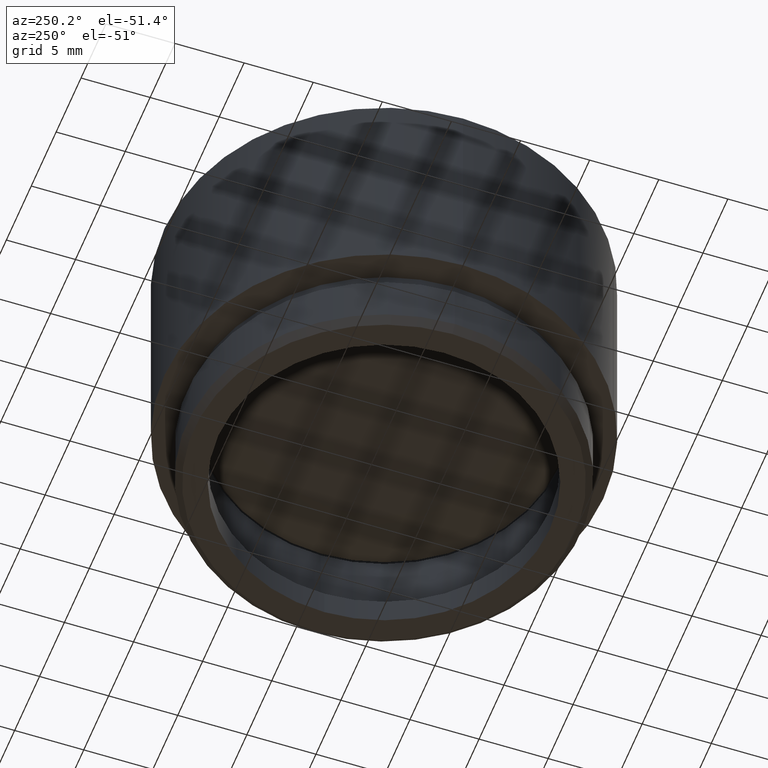
[diagram: clean part render]
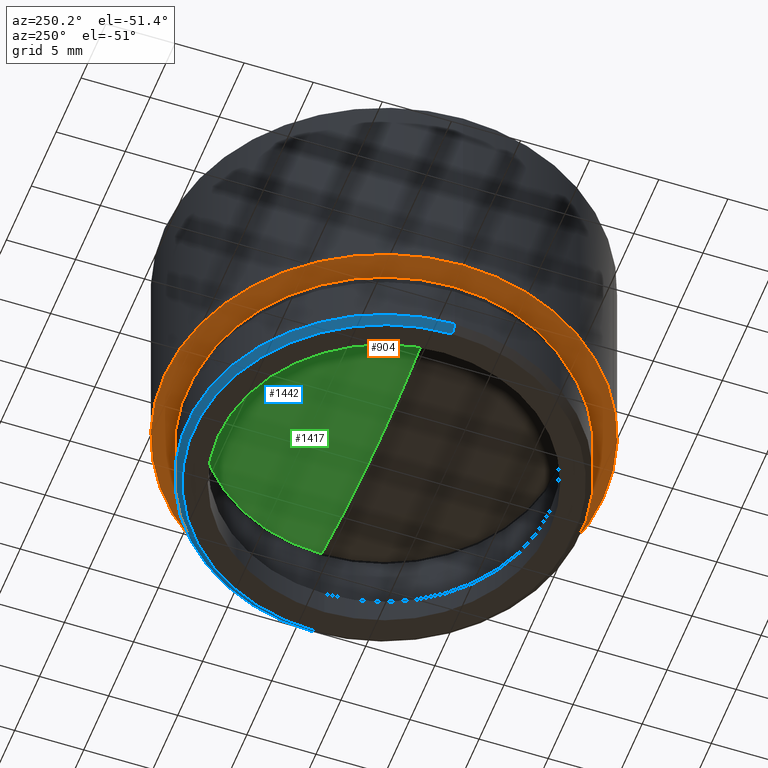
[diagram: same view with three faces highlighted in distinct colors, each labeled with its STEP entity id]
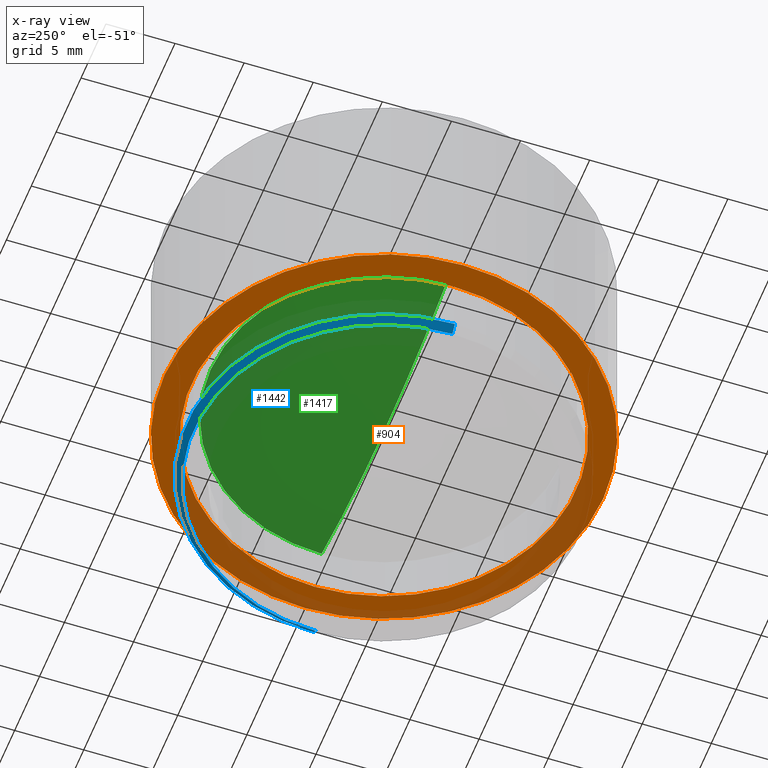
[diagram: x-ray of the same camera — body ghosted, the three highlighted faces saturated]
A machine part, auxiliary view with three faces highlighted in distinct colors.
The next image is the same camera in x-ray (body ghosted, the three faces saturated) — at least one of them is partly hidden behind the body in this view.
Their STEP definitions:

[orange] entity #904 — the highlighted planar face has unit normal (0, 0, -1).
#49 = DIRECTION ( 'NONE',  ( 0.000000000000000000, 0.000000000000000000, -1.000000000000000000 ) ) ;
#71 = AXIS2_PLACEMENT_3D ( 'NONE', #1366, #49, #1620 ) ;
#125 = CARTESIAN_POINT ( 'NONE',  ( 0.000000000000000000, 0.000000000000000000, 5.000000000000000000 ) ) ;
#140 = DIRECTION ( 'NONE',  ( 0.000000000000000000, 0.000000000000000000, -1.000000000000000000 ) ) ;
#186 = EDGE_CURVE ( 'NONE', #256, #861, #1161, .T. ) ;
#223 = VERTEX_POINT ( 'NONE', #780 ) ;
#253 = DIRECTION ( 'NONE',  ( -1.000000000000000000, 0.000000000000000000, -0.000000000000000000 ) ) ;
#256 = VERTEX_POINT ( 'NONE', #1311 ) ;
#268 = CARTESIAN_POINT ( 'NONE',  ( 0.000000000000000000, 0.000000000000000000, 5.000000000000000000 ) ) ;
#302 = EDGE_CURVE ( 'NONE', #575, #223, #1137, .T. ) ;
#312 = EDGE_LOOP ( 'NONE', ( #980, #882 ) ) ;
#398 = CARTESIAN_POINT ( 'NONE',  ( 15.87800000000000011, 1.944494187686167431E-15, 5.000000000000000000 ) ) ;
#459 = EDGE_LOOP ( 'NONE', ( #848, #900 ) ) ;
#517 = PLANE ( 'NONE',  #896 ) ;
#521 = CARTESIAN_POINT ( 'NONE',  ( 0.000000000000000000, 0.000000000000000000, 5.000000000000000000 ) ) ;
#539 = CIRCLE ( 'NONE', #71, 13.90000000000000036 ) ;
#575 = VERTEX_POINT ( 'NONE', #1268 ) ;
#735 = AXIS2_PLACEMENT_3D ( 'NONE', #1192, #796, #1320 ) ;
#780 = CARTESIAN_POINT ( 'NONE',  ( -13.90000000000000036, 1.702259050814821084E-15, 5.000000000000000000 ) ) ;
#796 = DIRECTION ( 'NONE',  ( 0.000000000000000000, 0.000000000000000000, -1.000000000000000000 ) ) ;
#848 = ORIENTED_EDGE ( 'NONE', *, *, #186, .T. ) ;
#861 = VERTEX_POINT ( 'NONE', #398 ) ;
#882 = ORIENTED_EDGE ( 'NONE', *, *, #1005, .F. ) ;
#896 = AXIS2_PLACEMENT_3D ( 'NONE', #268, #1176, #253 ) ;
#900 = ORIENTED_EDGE ( 'NONE', *, *, #1334, .T. ) ;
#904 = ADVANCED_FACE ( 'NONE', ( #1195, #1452 ), #517, .T. ) ;
#980 = ORIENTED_EDGE ( 'NONE', *, *, #302, .F. ) ;
#1005 = EDGE_CURVE ( 'NONE', #223, #575, #539, .T. ) ;
#1137 = CIRCLE ( 'NONE', #1628, 13.90000000000000036 ) ;
#1161 = CIRCLE ( 'NONE', #1383, 15.87800000000000011 ) ;
#1176 = DIRECTION ( 'NONE',  ( 0.000000000000000000, 0.000000000000000000, -1.000000000000000000 ) ) ;
#1191 = DIRECTION ( 'NONE',  ( 0.000000000000000000, 0.000000000000000000, -1.000000000000000000 ) ) ;
#1192 = CARTESIAN_POINT ( 'NONE',  ( 0.000000000000000000, 0.000000000000000000, 5.000000000000000000 ) ) ;
#1195 = FACE_OUTER_BOUND ( 'NONE', #459, .T. ) ;
#1268 = CARTESIAN_POINT ( 'NONE',  ( 13.90000000000000036, 0.000000000000000000, 5.000000000000000000 ) ) ;
#1311 = CARTESIAN_POINT ( 'NONE',  ( -15.87800000000000011, 0.000000000000000000, 5.000000000000000000 ) ) ;
#1320 = DIRECTION ( 'NONE',  ( -1.000000000000000000, 0.000000000000000000, 0.000000000000000000 ) ) ;
#1334 = EDGE_CURVE ( 'NONE', #861, #256, #1425, .T. ) ;
#1366 = CARTESIAN_POINT ( 'NONE',  ( 0.000000000000000000, 0.000000000000000000, 5.000000000000000000 ) ) ;
#1383 = AXIS2_PLACEMENT_3D ( 'NONE', #125, #1191, #1434 ) ;
#1425 = CIRCLE ( 'NONE', #735, 15.87800000000000011 ) ;
#1434 = DIRECTION ( 'NONE',  ( -1.000000000000000000, 0.000000000000000000, 0.000000000000000000 ) ) ;
#1452 = FACE_BOUND ( 'NONE', #312, .T. ) ;
#1571 = DIRECTION ( 'NONE',  ( -1.000000000000000000, 0.000000000000000000, 0.000000000000000000 ) ) ;
#1620 = DIRECTION ( 'NONE',  ( -1.000000000000000000, 0.000000000000000000, 0.000000000000000000 ) ) ;
#1628 = AXIS2_PLACEMENT_3D ( 'NONE', #521, #140, #1571 ) ;

[blue] entity #1442 — the highlighted conical surface has half-angle 45 deg.
#11 = VERTEX_POINT ( 'NONE', #1075 ) ;
#67 = CARTESIAN_POINT ( 'NONE',  ( 0.000000000000000000, 0.000000000000000000, 0.5000000000000038858 ) ) ;
#112 = DIRECTION ( 'NONE',  ( 0.7071067811865512365, 0.000000000000000000, 0.7071067811865439090 ) ) ;
#184 = AXIS2_PLACEMENT_3D ( 'NONE', #413, #1041, #922 ) ;
#198 = DIRECTION ( 'NONE',  ( -0.000000000000000000, -0.000000000000000000, -1.000000000000000000 ) ) ;
#291 = CIRCLE ( 'NONE', #1372, 13.74999999999999112 ) ;
#297 = EDGE_CURVE ( 'NONE', #1173, #1235, #1070, .T. ) ;
#314 = CARTESIAN_POINT ( 'NONE',  ( -13.74999999999999112, 1.714505518806294046E-15, 0.000000000000000000 ) ) ;
#399 = DIRECTION ( 'NONE',  ( 0.000000000000000000, 0.000000000000000000, 1.000000000000000000 ) ) ;
#413 = CARTESIAN_POINT ( 'NONE',  ( 0.000000000000000000, 0.000000000000000000, 0.000000000000000000 ) ) ;
#428 = DIRECTION ( 'NONE',  ( -0.7071067811865512365, 8.659560562354978464E-17, 0.7071067811865439090 ) ) ;
#551 = CARTESIAN_POINT ( 'NONE',  ( -13.74999999999999112, 1.683889348827609668E-15, 0.000000000000000000 ) ) ;
#633 = EDGE_LOOP ( 'NONE', ( #1418, #1526, #1580, #1480 ) ) ;
#719 = VECTOR ( 'NONE', #112, 1000.000000000000000 ) ;
#725 = DIRECTION ( 'NONE',  ( 1.000000000000000000, 0.000000000000000000, 0.000000000000000000 ) ) ;
#790 = DIRECTION ( 'NONE',  ( 1.000000000000000000, 0.000000000000000000, 0.000000000000000000 ) ) ;
#922 = DIRECTION ( 'NONE',  ( 1.000000000000000000, 0.000000000000000000, 0.000000000000000000 ) ) ;
#925 = CARTESIAN_POINT ( 'NONE',  ( 13.74999999999999112, 0.000000000000000000, 0.000000000000000000 ) ) ;
#931 = FACE_OUTER_BOUND ( 'NONE', #633, .T. ) ;
#983 = CIRCLE ( 'NONE', #1314, 14.25000000000000000 ) ;
#1001 = VERTEX_POINT ( 'NONE', #314 ) ;
#1041 = DIRECTION ( 'NONE',  ( 0.000000000000000000, 0.000000000000000000, 1.000000000000000000 ) ) ;
#1070 = LINE ( 'NONE', #925, #719 ) ;
#1075 = CARTESIAN_POINT ( 'NONE',  ( -14.25000000000000000, 0.000000000000000000, 0.5000000000000038858 ) ) ;
#1116 = EDGE_CURVE ( 'NONE', #1001, #1173, #291, .T. ) ;
#1125 = CONICAL_SURFACE ( 'NONE', #184, 13.74999999999999112, 0.7853981633974533860 ) ;
#1134 = EDGE_CURVE ( 'NONE', #1235, #11, #983, .T. ) ;
#1173 = VERTEX_POINT ( 'NONE', #1197 ) ;
#1197 = CARTESIAN_POINT ( 'NONE',  ( 13.74999999999999112, 0.000000000000000000, 0.000000000000000000 ) ) ;
#1235 = VERTEX_POINT ( 'NONE', #1671 ) ;
#1314 = AXIS2_PLACEMENT_3D ( 'NONE', #67, #399, #790 ) ;
#1344 = LINE ( 'NONE', #551, #1533 ) ;
#1372 = AXIS2_PLACEMENT_3D ( 'NONE', #1634, #198, #725 ) ;
#1418 = ORIENTED_EDGE ( 'NONE', *, *, #1116, .F. ) ;
#1442 = ADVANCED_FACE ( 'NONE', ( #931 ), #1125, .T. ) ;
#1480 = ORIENTED_EDGE ( 'NONE', *, *, #297, .F. ) ;
#1526 = ORIENTED_EDGE ( 'NONE', *, *, #1595, .T. ) ;
#1533 = VECTOR ( 'NONE', #428, 1000.000000000000000 ) ;
#1580 = ORIENTED_EDGE ( 'NONE', *, *, #1134, .F. ) ;
#1595 = EDGE_CURVE ( 'NONE', #1001, #11, #1344, .T. ) ;
#1634 = CARTESIAN_POINT ( 'NONE',  ( 0.000000000000000000, 0.000000000000000000, 0.000000000000000000 ) ) ;
#1671 = CARTESIAN_POINT ( 'NONE',  ( 14.25000000000000000, 1.745121688784978228E-15, 0.5000000000000038858 ) ) ;

[green] entity #1417 — the highlighted toroidal blend (fillet) surface has major radius 0.0222 mm and minor (blend) radius 57.7 mm.
#76 = CARTESIAN_POINT ( 'NONE',  ( 0.02222021160204129889, 0.000000000000000000, 45.19999572150930334 ) ) ;
#87 = EDGE_CURVE ( 'NONE', #331, #288, #581, .T. ) ;
#113 = ORIENTED_EDGE ( 'NONE', *, *, #143, .T. ) ;
#143 = EDGE_CURVE ( 'NONE', #531, #288, #1047, .T. ) ;
#157 = TOROIDAL_SURFACE ( 'NONE', #266, 0.02222021160204129889, 57.70000000000000284 ) ;
#266 = AXIS2_PLACEMENT_3D ( 'NONE', #406, #509, #807 ) ;
#288 = VERTEX_POINT ( 'NONE', #803 ) ;
#308 = AXIS2_PLACEMENT_3D ( 'NONE', #1564, #533, #395 ) ;
#331 = VERTEX_POINT ( 'NONE', #1440 ) ;
#395 = DIRECTION ( 'NONE',  ( 1.000000000000000000, 0.000000000000000000, 0.000000000000000000 ) ) ;
#406 = CARTESIAN_POINT ( 'NONE',  ( 0.000000000000000000, 0.000000000000000000, 45.19999572150930334 ) ) ;
#415 = AXIS2_PLACEMENT_3D ( 'NONE', #76, #606, #1540 ) ;
#425 = CARTESIAN_POINT ( 'NONE',  ( -12.54340097317703950, 1.545712510069719889E-15, -11.12504340263120106 ) ) ;
#489 = CIRCLE ( 'NONE', #623, 57.70000000000000284 ) ;
#509 = DIRECTION ( 'NONE',  ( 0.000000000000000000, 0.000000000000000000, 1.000000000000000000 ) ) ;
#531 = VERTEX_POINT ( 'NONE', #425 ) ;
#533 = DIRECTION ( 'NONE',  ( 0.000000000000000000, 0.000000000000000000, -1.000000000000000000 ) ) ;
#534 = DIRECTION ( 'NONE',  ( -1.000000000000000000, 1.224646799147351728E-16, 0.000000000000000000 ) ) ;
#581 = CIRCLE ( 'NONE', #415, 57.70000000000000284 ) ;
#606 = DIRECTION ( 'NONE',  ( 0.000000000000000000, -1.000000000000000000, 0.000000000000000000 ) ) ;
#623 = AXIS2_PLACEMENT_3D ( 'NONE', #1450, #1557, #534 ) ;
#781 = FACE_OUTER_BOUND ( 'NONE', #1253, .T. ) ;
#786 = ORIENTED_EDGE ( 'NONE', *, *, #87, .F. ) ;
#803 = CARTESIAN_POINT ( 'NONE',  ( 12.54340097317703950, 0.000000000000000000, -11.12504340263120106 ) ) ;
#807 = DIRECTION ( 'NONE',  ( 1.000000000000000000, 0.000000000000000000, 0.000000000000000000 ) ) ;
#1047 = CIRCLE ( 'NONE', #308, 12.54340097317703950 ) ;
#1253 = EDGE_LOOP ( 'NONE', ( #786, #1318, #113 ) ) ;
#1318 = ORIENTED_EDGE ( 'NONE', *, *, #1396, .T. ) ;
#1396 = EDGE_CURVE ( 'NONE', #331, #531, #489, .T. ) ;
#1417 = ADVANCED_FACE ( 'NONE', ( #781 ), #157, .T. ) ;
#1440 = CARTESIAN_POINT ( 'NONE',  ( 1.350509331102255830E-14, 0.000000000000000000, -12.50000000000000000 ) ) ;
#1450 = CARTESIAN_POINT ( 'NONE',  ( -0.02222021160204129889, 2.721191101481680310E-18, 45.19999572150930334 ) ) ;
#1540 = DIRECTION ( 'NONE',  ( 0.000000000000000000, 0.000000000000000000, -1.000000000000000000 ) ) ;
#1557 = DIRECTION ( 'NONE',  ( 1.224646799147351975E-16, 1.000000000000000000, 0.000000000000000000 ) ) ;
#1564 = CARTESIAN_POINT ( 'NONE',  ( 0.000000000000000000, 0.000000000000000000, -11.12504340263120106 ) ) ;